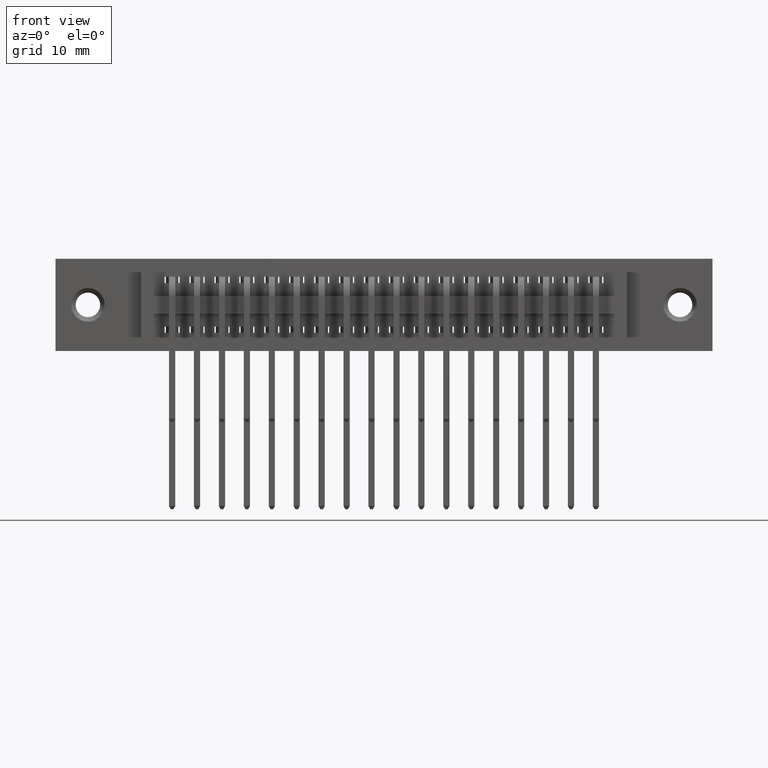
[diagram: clean part render]
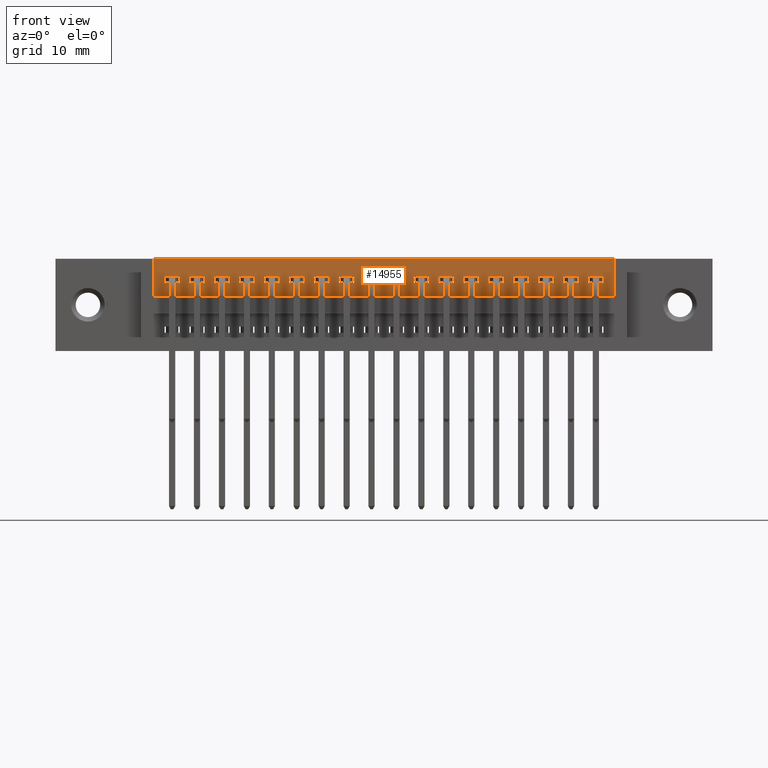
[diagram: same view with one face highlighted and labeled with its STEP entity id]
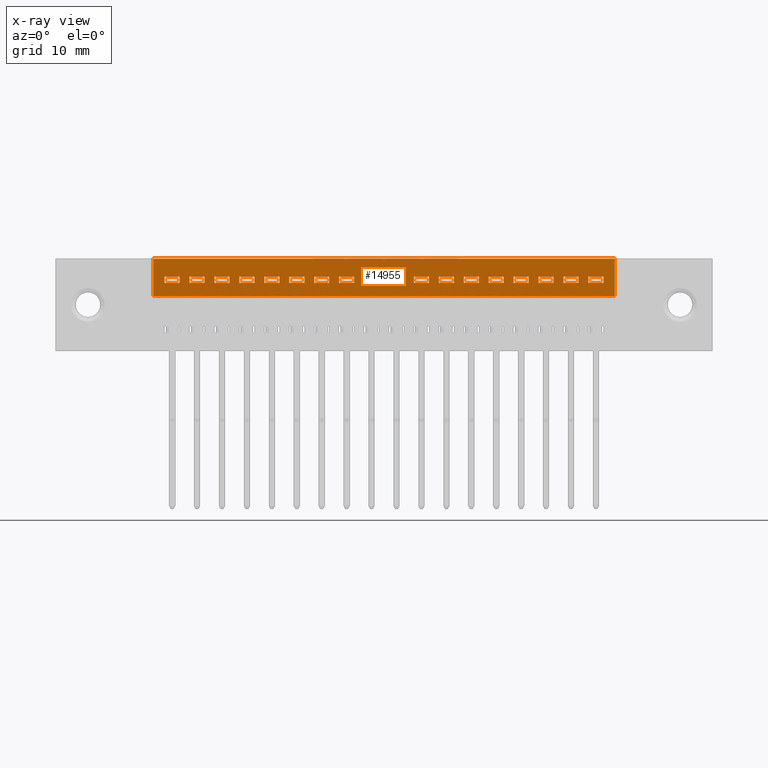
[diagram: x-ray of the same camera — body ghosted, the highlighted face saturated]
A machine part, front view. The second image highlights one B-rep face of the part: STEP entity #14955.
The next image is the same camera in x-ray: the body ghosted, the highlighted face saturated — about 0% of this face is hidden behind the body in this view.
In plain terms, the highlighted planar face has unit normal (0, -1, 0).
Its self-contained STEP definition (entity closure, byte-faithful):
#13 = VERTEX_POINT ( 'NONE', #13791 ) ;
#114 = DIRECTION ( 'NONE',  ( 1.000000000000000000, 0.0000000000000000000, 0.0000000000000000000 ) ) ;
#119 = EDGE_LOOP ( 'NONE', ( #5108, #15818, #12258, #6383 ) ) ;
#123 = CARTESIAN_POINT ( 'NONE',  ( 1.237500000000000000, 0.05000000000000000300, -0.1499999999999999900 ) ) ;
#124 = VECTOR ( 'NONE', #6299, 39.37007874015748100 ) ;
#161 = LINE ( 'NONE', #12081, #16521 ) ;
#196 = VECTOR ( 'NONE', #18977, 39.37007874015748100 ) ;
#213 = CARTESIAN_POINT ( 'NONE',  ( 0.5974999999999999200, 0.05000000000000000300, -0.09750000000000005900 ) ) ;
#282 = CARTESIAN_POINT ( 'NONE',  ( 1.597500000000000100, 0.05000000000000000300, -0.1499999999999999900 ) ) ;
#284 = DIRECTION ( 'NONE',  ( -0.0000000000000000000, -0.0000000000000000000, 1.000000000000000000 ) ) ;
#411 = DIRECTION ( 'NONE',  ( -1.000000000000000000, 0.0000000000000000000, 0.0000000000000000000 ) ) ;
#419 = ORIENTED_EDGE ( 'NONE', *, *, #19956, .F. ) ;
#428 = CARTESIAN_POINT ( 'NONE',  ( 0.8974999999999999600, 0.05000000000000014800, -0.07250000000000002300 ) ) ;
#453 = CARTESIAN_POINT ( 'NONE',  ( 0.3924999999999996800, 0.05000000000000000300, -0.09750000000000003100 ) ) ;
#509 = CARTESIAN_POINT ( 'NONE',  ( 0.3924999999999996800, 0.05000000000000000300, -0.09749999999999996200 ) ) ;
#554 = CARTESIAN_POINT ( 'NONE',  ( 1.937500000000000000, 0.05000000000000014800, -0.07249999999999996700 ) ) ;
#572 = VERTEX_POINT ( 'NONE', #3306 ) ;
#621 = CARTESIAN_POINT ( 'NONE',  ( 1.937500000000000000, 0.05000000000000000300, -0.1499999999999999900 ) ) ;
#626 = EDGE_CURVE ( 'NONE', #18184, #15515, #16091, .T. ) ;
#645 = ORIENTED_EDGE ( 'NONE', *, *, #12135, .F. ) ;
#658 = ORIENTED_EDGE ( 'NONE', *, *, #18298, .F. ) ;
#678 = VECTOR ( 'NONE', #6765, 39.37007874015748100 ) ;
#744 = VECTOR ( 'NONE', #15728, 39.37007874015748100 ) ;
#763 = CARTESIAN_POINT ( 'NONE',  ( 0.8974999999999999600, 0.05000000000000000300, -0.1499999999999999900 ) ) ;
#766 = EDGE_CURVE ( 'NONE', #3446, #11500, #17750, .T. ) ;
#813 = LINE ( 'NONE', #17484, #17121 ) ;
#842 = DIRECTION ( 'NONE',  ( -1.000000000000000000, 0.0000000000000000000, 0.0000000000000000000 ) ) ;
#898 = DIRECTION ( 'NONE',  ( 0.0000000000000000000, 0.0000000000000000000, 1.000000000000000000 ) ) ;
#913 = CARTESIAN_POINT ( 'NONE',  ( 2.037500000000000100, 0.05000000000000000300, -0.1499999999999999900 ) ) ;
#914 = EDGE_CURVE ( 'NONE', #9929, #18307, #10838, .T. ) ;
#933 = CARTESIAN_POINT ( 'NONE',  ( 1.337500000000000100, 0.05000000000000014800, -0.07250000000000000900 ) ) ;
#956 = EDGE_CURVE ( 'NONE', #572, #1815, #3331, .T. ) ;
#1009 = LINE ( 'NONE', #7665, #13710 ) ;
#1055 = DIRECTION ( 'NONE',  ( -1.000000000000000000, 0.0000000000000000000, 0.0000000000000000000 ) ) ;
#1059 = EDGE_CURVE ( 'NONE', #19697, #14354, #16557, .T. ) ;
#1093 = VERTEX_POINT ( 'NONE', #19363 ) ;
#1104 = VECTOR ( 'NONE', #5077, 39.37007874015748100 ) ;
#1110 = VECTOR ( 'NONE', #12132, 39.37007874015748100 ) ;
#1207 = CARTESIAN_POINT ( 'NONE',  ( 1.137499999999999700, 0.05000000000000000300, -0.1499999999999999900 ) ) ;
#1221 = EDGE_CURVE ( 'NONE', #19748, #3450, #18697, .T. ) ;
#1274 = CARTESIAN_POINT ( 'NONE',  ( 1.997499999999999800, 0.05000000000000000300, -0.09749999999999996200 ) ) ;
#1307 = LINE ( 'NONE', #509, #5159 ) ;
#1408 = EDGE_LOOP ( 'NONE', ( #12247, #4354, #2517, #7371 ) ) ;
#1435 = VECTOR ( 'NONE', #16923, 39.37007874015748100 ) ;
#1452 = ORIENTED_EDGE ( 'NONE', *, *, #6607, .T. ) ;
#1462 = CARTESIAN_POINT ( 'NONE',  ( 1.197499999999999800, 0.05000000000000000300, -0.1499999999999999900 ) ) ;
#1471 = LINE ( 'NONE', #16442, #13629 ) ;
#1473 = EDGE_LOOP ( 'NONE', ( #8960, #15468, #16423, #6030 ) ) ;
#1527 = LINE ( 'NONE', #19217, #4893 ) ;
#1632 = EDGE_LOOP ( 'NONE', ( #645, #7972, #19641, #5130 ) ) ;
#1639 = LINE ( 'NONE', #5899, #1110 ) ;
#1671 = VECTOR ( 'NONE', #9610, 39.37007874015748100 ) ;
#1698 = CARTESIAN_POINT ( 'NONE',  ( 1.637500000000000000, 0.05000000000000001000, -0.09749999999999998900 ) ) ;
#1734 = DIRECTION ( 'NONE',  ( 0.0000000000000000000, 0.0000000000000000000, 1.000000000000000000 ) ) ;
#1739 = ORIENTED_EDGE ( 'NONE', *, *, #6784, .F. ) ;
#1771 = VERTEX_POINT ( 'NONE', #3778 ) ;
#1778 = VECTOR ( 'NONE', #898, 39.37007874015748100 ) ;
#1815 = VERTEX_POINT ( 'NONE', #13347 ) ;
#1863 = CARTESIAN_POINT ( 'NONE',  ( 2.097500000000000100, 0.05000000000000000300, -0.1499999999999999900 ) ) ;
#1880 = VECTOR ( 'NONE', #19351, 39.37007874015748100 ) ;
#1883 = VERTEX_POINT ( 'NONE', #16562 ) ;
#1927 = LINE ( 'NONE', #15385, #1435 ) ;
#1937 = ORIENTED_EDGE ( 'NONE', *, *, #6720, .T. ) ;
#1980 = VECTOR ( 'NONE', #10892, 39.37007874015748100 ) ;
#2026 = VERTEX_POINT ( 'NONE', #10752 ) ;
#2059 = DIRECTION ( 'NONE',  ( 0.0000000000000000000, 0.0000000000000000000, 1.000000000000000000 ) ) ;
#2060 = EDGE_CURVE ( 'NONE', #16183, #11002, #4071, .T. ) ;
#2093 = EDGE_CURVE ( 'NONE', #8984, #5537, #10517, .T. ) ;
#2097 = EDGE_CURVE ( 'NONE', #12330, #19501, #3035, .T. ) ;
#2123 = LINE ( 'NONE', #12322, #14261 ) ;
#2126 = DIRECTION ( 'NONE',  ( 1.000000000000000000, 0.0000000000000000000, 0.0000000000000000000 ) ) ;
#2160 = VECTOR ( 'NONE', #16875, 39.37007874015748100 ) ;
#2198 = DIRECTION ( 'NONE',  ( 0.0000000000000000000, 0.0000000000000000000, 1.000000000000000000 ) ) ;
#2206 = LINE ( 'NONE', #1207, #5584 ) ;
#2218 = CARTESIAN_POINT ( 'NONE',  ( 1.297500000000000100, 0.05000000000000000300, -0.1499999999999999900 ) ) ;
#2275 = VERTEX_POINT ( 'NONE', #10038 ) ;
#2288 = DIRECTION ( 'NONE',  ( 0.0000000000000000000, 0.0000000000000000000, 1.000000000000000000 ) ) ;
#2309 = CARTESIAN_POINT ( 'NONE',  ( 0.5374999999999999800, 0.05000000000000000300, -0.1499999999999999900 ) ) ;
#2320 = CARTESIAN_POINT ( 'NONE',  ( 0.9974999999999999400, 0.05000000000000000300, -0.09750000000000001700 ) ) ;
#2358 = DIRECTION ( 'NONE',  ( 0.0000000000000000000, 0.0000000000000000000, 1.000000000000000000 ) ) ;
#2377 = VERTEX_POINT ( 'NONE', #19456 ) ;
#2399 = EDGE_CURVE ( 'NONE', #6497, #6520, #17172, .T. ) ;
#2417 = DIRECTION ( 'NONE',  ( 0.0000000000000000000, 0.0000000000000000000, 1.000000000000000000 ) ) ;
#2512 = CARTESIAN_POINT ( 'NONE',  ( 1.697499999999999800, 0.05000000000000000300, -0.09749999999999998900 ) ) ;
#2517 = ORIENTED_EDGE ( 'NONE', *, *, #17414, .F. ) ;
#2525 = LINE ( 'NONE', #13852, #9580 ) ;
#2554 = ORIENTED_EDGE ( 'NONE', *, *, #14363, .F. ) ;
#2571 = EDGE_CURVE ( 'NONE', #13666, #5276, #14757, .T. ) ;
#2702 = VERTEX_POINT ( 'NONE', #17144 ) ;
#2718 = LINE ( 'NONE', #10281, #10738 ) ;
#2727 = EDGE_CURVE ( 'NONE', #10124, #13666, #3974, .T. ) ;
#2866 = VERTEX_POINT ( 'NONE', #11454 ) ;
#2992 = CARTESIAN_POINT ( 'NONE',  ( 1.137499999999999700, 0.05000000000000001000, -0.09750000000000001700 ) ) ;
#3035 = LINE ( 'NONE', #13959, #1980 ) ;
#3062 = EDGE_CURVE ( 'NONE', #6695, #7894, #18800, .T. ) ;
#3072 = CARTESIAN_POINT ( 'NONE',  ( 1.097499999999999900, 0.05000000000000000300, -0.09750000000000001700 ) ) ;
#3076 = FACE_BOUND ( 'NONE', #6888, .T. ) ;
#3132 = EDGE_CURVE ( 'NONE', #3450, #2377, #1639, .T. ) ;
#3147 = VERTEX_POINT ( 'NONE', #4265 ) ;
#3187 = CARTESIAN_POINT ( 'NONE',  ( 0.3924999999999996800, 0.05000000000000000300, -0.07250000000000000900 ) ) ;
#3256 = LINE ( 'NONE', #8926, #15780 ) ;
#3272 = FACE_BOUND ( 'NONE', #8173, .T. ) ;
#3277 = VECTOR ( 'NONE', #12723, 39.37007874015748100 ) ;
#3291 = LINE ( 'NONE', #7162, #19368 ) ;
#3306 = CARTESIAN_POINT ( 'NONE',  ( 2.037500000000000100, 0.05000000000000001000, -0.09749999999999996200 ) ) ;
#3324 = CARTESIAN_POINT ( 'NONE',  ( 1.637500000000000000, 0.05000000000000014800, -0.07249999999999998100 ) ) ;
#3331 = LINE ( 'NONE', #913, #1778 ) ;
#3398 = LINE ( 'NONE', #11325, #18542 ) ;
#3446 = VERTEX_POINT ( 'NONE', #8290 ) ;
#3450 = VERTEX_POINT ( 'NONE', #15969 ) ;
#3463 = ORIENTED_EDGE ( 'NONE', *, *, #17467, .F. ) ;
#3466 = LINE ( 'NONE', #4364, #15505 ) ;
#3487 = ORIENTED_EDGE ( 'NONE', *, *, #2097, .F. ) ;
#3501 = DIRECTION ( 'NONE',  ( 1.000000000000000000, 0.0000000000000000000, 0.0000000000000000000 ) ) ;
#3555 = EDGE_LOOP ( 'NONE', ( #16845, #7780, #18363, #15508 ) ) ;
#3567 = FACE_BOUND ( 'NONE', #3555, .T. ) ;
#3595 = CARTESIAN_POINT ( 'NONE',  ( 0.3924999999999996800, 0.05000000000000000300, -0.1499999999999999900 ) ) ;
#3663 = CARTESIAN_POINT ( 'NONE',  ( 0.7974999999999998800, 0.05000000000000014800, -0.07250000000000002300 ) ) ;
#3717 = ORIENTED_EDGE ( 'NONE', *, *, #956, .T. ) ;
#3721 = VERTEX_POINT ( 'NONE', #8894 ) ;
#3750 = CARTESIAN_POINT ( 'NONE',  ( 0.3924999999999996800, 0.05000000000000000300, -0.07249999999999998100 ) ) ;
#3778 = CARTESIAN_POINT ( 'NONE',  ( 1.737500000000000000, 0.05000000000000014800, -0.07249999999999998100 ) ) ;
#3804 = LINE ( 'NONE', #14410, #15330 ) ;
#3891 = CARTESIAN_POINT ( 'NONE',  ( 1.637500000000000000, 0.05000000000000000300, -0.1499999999999999900 ) ) ;
#3939 = ORIENTED_EDGE ( 'NONE', *, *, #2093, .F. ) ;
#3974 = LINE ( 'NONE', #1462, #19995 ) ;
#3991 = DIRECTION ( 'NONE',  ( 1.000000000000000000, 0.0000000000000000000, 0.0000000000000000000 ) ) ;
#4071 = LINE ( 'NONE', #18357, #15562 ) ;
#4074 = CARTESIAN_POINT ( 'NONE',  ( 1.897500000000000000, 0.05000000000000014800, -0.07249999999999996700 ) ) ;
#4113 = VECTOR ( 'NONE', #16258, 39.37007874015748100 ) ;
#4114 = FACE_BOUND ( 'NONE', #12463, .T. ) ;
#4173 = FACE_OUTER_BOUND ( 'NONE', #1473, .T. ) ;
#4233 = VECTOR ( 'NONE', #17168, 39.37007874015748100 ) ;
#4252 = LINE ( 'NONE', #18396, #16191 ) ;
#4265 = CARTESIAN_POINT ( 'NONE',  ( 1.337500000000000100, 0.05000000000000001000, -0.09750000000000000300 ) ) ;
#4354 = ORIENTED_EDGE ( 'NONE', *, *, #17125, .T. ) ;
#4364 = CARTESIAN_POINT ( 'NONE',  ( 0.9374999999999998900, 0.05000000000000000300, -0.1499999999999999900 ) ) ;
#4382 = ORIENTED_EDGE ( 'NONE', *, *, #18071, .T. ) ;
#4391 = ORIENTED_EDGE ( 'NONE', *, *, #3132, .F. ) ;
#4405 = EDGE_CURVE ( 'NONE', #2702, #13, #11588, .T. ) ;
#4436 = CARTESIAN_POINT ( 'NONE',  ( 2.137500000000000200, 0.05000000000000014800, -0.07249999999999996700 ) ) ;
#4445 = LINE ( 'NONE', #12842, #8664 ) ;
#4471 = EDGE_CURVE ( 'NONE', #1883, #20291, #5960, .T. ) ;
#4472 = VECTOR ( 'NONE', #14202, 39.37007874015748100 ) ;
#4480 = DIRECTION ( 'NONE',  ( 1.000000000000000000, 0.0000000000000000000, 0.0000000000000000000 ) ) ;
#4521 = CARTESIAN_POINT ( 'NONE',  ( 1.597500000000000100, 0.05000000000000000300, -0.09750000000000000300 ) ) ;
#4530 = DIRECTION ( 'NONE',  ( 1.000000000000000000, 0.0000000000000000000, 0.0000000000000000000 ) ) ;
#4551 = ORIENTED_EDGE ( 'NONE', *, *, #11077, .F. ) ;
#4581 = DIRECTION ( 'NONE',  ( 1.000000000000000000, 0.0000000000000000000, 0.0000000000000000000 ) ) ;
#4637 = EDGE_LOOP ( 'NONE', ( #2554, #8376, #10852, #10874 ) ) ;
#4679 = ORIENTED_EDGE ( 'NONE', *, *, #14332, .T. ) ;
#4686 = CARTESIAN_POINT ( 'NONE',  ( 0.4374999999999998900, 0.05000000000000000300, -0.1499999999999999900 ) ) ;
#4702 = VECTOR ( 'NONE', #3991, 39.37007874015748100 ) ;
#4722 = VECTOR ( 'NONE', #19295, 39.37007874015748100 ) ;
#4732 = CARTESIAN_POINT ( 'NONE',  ( 1.397500000000000000, 0.05000000000000000300, -0.09750000000000000300 ) ) ;
#4747 = CARTESIAN_POINT ( 'NONE',  ( 0.3924999999999996800, 0.05000000000000000300, -0.09750000000000005900 ) ) ;
#4893 = VECTOR ( 'NONE', #10075, 39.37007874015748100 ) ;
#5020 = VECTOR ( 'NONE', #19304, 39.37007874015748100 ) ;
#5027 = CARTESIAN_POINT ( 'NONE',  ( 0.3924999999999996800, 0.05000000000000000300, -0.1499999999999999900 ) ) ;
#5077 = DIRECTION ( 'NONE',  ( 1.000000000000000000, 0.0000000000000000000, 0.0000000000000000000 ) ) ;
#5108 = ORIENTED_EDGE ( 'NONE', *, *, #10777, .F. ) ;
#5130 = ORIENTED_EDGE ( 'NONE', *, *, #1059, .F. ) ;
#5159 = VECTOR ( 'NONE', #11694, 39.37007874015748100 ) ;
#5187 = LINE ( 'NONE', #5650, #4702 ) ;
#5276 = VERTEX_POINT ( 'NONE', #8221 ) ;
#5327 = CARTESIAN_POINT ( 'NONE',  ( 1.597500000000000100, 0.05000000000000014800, -0.07249999999999998100 ) ) ;
#5330 = EDGE_LOOP ( 'NONE', ( #7520, #7781, #12177, #11224 ) ) ;
#5391 = VECTOR ( 'NONE', #14858, 39.37007874015748100 ) ;
#5403 = ORIENTED_EDGE ( 'NONE', *, *, #1221, .F. ) ;
#5408 = CARTESIAN_POINT ( 'NONE',  ( 1.337500000000000100, 0.05000000000000000300, -0.1499999999999999900 ) ) ;
#5409 = VECTOR ( 'NONE', #2288, 39.37007874015748100 ) ;
#5537 = VERTEX_POINT ( 'NONE', #7257 ) ;
#5584 = VECTOR ( 'NONE', #6172, 39.37007874015748100 ) ;
#5641 = EDGE_CURVE ( 'NONE', #8467, #2377, #10601, .T. ) ;
#5650 = CARTESIAN_POINT ( 'NONE',  ( 0.3924999999999996800, 0.05000000000000000300, -0.09750000000000001700 ) ) ;
#5695 = AXIS2_PLACEMENT_3D ( 'NONE', #5027, #6631, #17443 ) ;
#5712 = EDGE_CURVE ( 'NONE', #9924, #6509, #17306, .T. ) ;
#5729 = ORIENTED_EDGE ( 'NONE', *, *, #8459, .F. ) ;
#5754 = CARTESIAN_POINT ( 'NONE',  ( 1.097499999999999900, 0.05000000000000000300, -0.1499999999999999900 ) ) ;
#5772 = EDGE_CURVE ( 'NONE', #12230, #17380, #8157, .T. ) ;
#5805 = VERTEX_POINT ( 'NONE', #4732 ) ;
#5847 = ORIENTED_EDGE ( 'NONE', *, *, #13337, .T. ) ;
#5856 = CARTESIAN_POINT ( 'NONE',  ( 0.3924999999999996800, 0.05000000000000000300, -0.07249999999999998100 ) ) ;
#5865 = VECTOR ( 'NONE', #13937, 39.37007874015748100 ) ;
#5899 = CARTESIAN_POINT ( 'NONE',  ( 0.3924999999999996800, 0.05000000000000000300, -0.07250000000000000900 ) ) ;
#5916 = VERTEX_POINT ( 'NONE', #3324 ) ;
#5960 = LINE ( 'NONE', #14069, #6453 ) ;
#6014 = VERTEX_POINT ( 'NONE', #19385 ) ;
#6019 = EDGE_CURVE ( 'NONE', #17456, #11336, #20135, .T. ) ;
#6030 = ORIENTED_EDGE ( 'NONE', *, *, #14166, .T. ) ;
#6076 = DIRECTION ( 'NONE',  ( 0.0000000000000000000, 0.0000000000000000000, 1.000000000000000000 ) ) ;
#6093 = ORIENTED_EDGE ( 'NONE', *, *, #14021, .F. ) ;
#6137 = LINE ( 'NONE', #11417, #17952 ) ;
#6160 = VERTEX_POINT ( 'NONE', #933 ) ;
#6172 = DIRECTION ( 'NONE',  ( 0.0000000000000000000, 0.0000000000000000000, 1.000000000000000000 ) ) ;
#6221 = CARTESIAN_POINT ( 'NONE',  ( 0.5974999999999999200, 0.05000000000000000300, -0.1499999999999999900 ) ) ;
#6299 = DIRECTION ( 'NONE',  ( 0.0000000000000000000, 0.0000000000000000000, 1.000000000000000000 ) ) ;
#6348 = CARTESIAN_POINT ( 'NONE',  ( 0.6974999999999999000, 0.05000000000000000300, -0.09750000000000003100 ) ) ;
#6382 = LINE ( 'NONE', #10699, #18212 ) ;
#6383 = ORIENTED_EDGE ( 'NONE', *, *, #6384, .F. ) ;
#6384 = EDGE_CURVE ( 'NONE', #17591, #7298, #12967, .T. ) ;
#6422 = ORIENTED_EDGE ( 'NONE', *, *, #6933, .F. ) ;
#6449 = VERTEX_POINT ( 'NONE', #9753 ) ;
#6453 = VECTOR ( 'NONE', #15588, 39.37007874015748100 ) ;
#6497 = VERTEX_POINT ( 'NONE', #18965 ) ;
#6507 = VECTOR ( 'NONE', #2358, 39.37007874015748100 ) ;
#6509 = VERTEX_POINT ( 'NONE', #12916 ) ;
#6520 = VERTEX_POINT ( 'NONE', #14448 ) ;
#6607 = EDGE_CURVE ( 'NONE', #18915, #15177, #1527, .T. ) ;
#6631 = DIRECTION ( 'NONE',  ( 0.0000000000000000000, -1.000000000000000000, 0.0000000000000000000 ) ) ;
#6636 = VECTOR ( 'NONE', #2059, 39.37007874015748100 ) ;
#6647 = VERTEX_POINT ( 'NONE', #5327 ) ;
#6695 = VERTEX_POINT ( 'NONE', #8645 ) ;
#6702 = VECTOR ( 'NONE', #18914, 39.37007874015748100 ) ;
#6720 = EDGE_CURVE ( 'NONE', #6014, #19501, #11292, .T. ) ;
#6765 = DIRECTION ( 'NONE',  ( 0.0000000000000000000, 0.0000000000000000000, 1.000000000000000000 ) ) ;
#6784 = EDGE_CURVE ( 'NONE', #13, #20017, #12949, .T. ) ;
#6861 = ORIENTED_EDGE ( 'NONE', *, *, #15573, .F. ) ;
#6874 = FACE_BOUND ( 'NONE', #12638, .T. ) ;
#6878 = EDGE_CURVE ( 'NONE', #15515, #1771, #6382, .T. ) ;
#6888 = EDGE_LOOP ( 'NONE', ( #6861, #4382, #15599, #19404 ) ) ;
#6933 = EDGE_CURVE ( 'NONE', #17843, #15619, #2525, .T. ) ;
#6938 = DIRECTION ( 'NONE',  ( -1.000000000000000000, 0.0000000000000000000, 0.0000000000000000000 ) ) ;
#6967 = VERTEX_POINT ( 'NONE', #7765 ) ;
#7053 = ORIENTED_EDGE ( 'NONE', *, *, #9910, .F. ) ;
#7057 = CARTESIAN_POINT ( 'NONE',  ( 1.737500000000000000, 0.05000000000000000300, -0.1499999999999999900 ) ) ;
#7135 = VECTOR ( 'NONE', #13374, 39.37007874015748100 ) ;
#7136 = VERTEX_POINT ( 'NONE', #14548 ) ;
#7137 = EDGE_CURVE ( 'NONE', #8063, #16146, #6137, .T. ) ;
#7145 = CARTESIAN_POINT ( 'NONE',  ( 0.7374999999999998200, 0.05000000000000000300, -0.1499999999999999900 ) ) ;
#7162 = CARTESIAN_POINT ( 'NONE',  ( 0.4974999999999998900, 0.05000000000000000300, -0.1499999999999999900 ) ) ;
#7257 = CARTESIAN_POINT ( 'NONE',  ( 0.5974999999999999200, 0.05000000000000014800, -0.07250000000000003700 ) ) ;
#7298 = VERTEX_POINT ( 'NONE', #10383 ) ;
#7371 = ORIENTED_EDGE ( 'NONE', *, *, #17054, .F. ) ;
#7382 = CARTESIAN_POINT ( 'NONE',  ( 0.9974999999999999400, 0.05000000000000000300, -0.1499999999999999900 ) ) ;
#7384 = EDGE_CURVE ( 'NONE', #2275, #15941, #13654, .T. ) ;
#7395 = FACE_BOUND ( 'NONE', #119, .T. ) ;
#7412 = VECTOR ( 'NONE', #19627, 39.37007874015748100 ) ;
#7441 = DIRECTION ( 'NONE',  ( 0.0000000000000000000, 0.0000000000000000000, 1.000000000000000000 ) ) ;
#7454 = DIRECTION ( 'NONE',  ( -1.000000000000000000, 0.0000000000000000000, 0.0000000000000000000 ) ) ;
#7520 = ORIENTED_EDGE ( 'NONE', *, *, #2060, .F. ) ;
#7600 = LINE ( 'NONE', #11189, #3277 ) ;
#7665 = CARTESIAN_POINT ( 'NONE',  ( 0.3924999999999996800, 0.05000000000000000300, -0.09750000000000000300 ) ) ;
#7666 = CARTESIAN_POINT ( 'NONE',  ( 2.197499999999999800, 0.05000000000000000300, -0.1499999999999999900 ) ) ;
#7693 = EDGE_LOOP ( 'NONE', ( #12210, #19102, #13410, #1739 ) ) ;
#7714 = VERTEX_POINT ( 'NONE', #12862 ) ;
#7765 = CARTESIAN_POINT ( 'NONE',  ( 0.6374999999999998400, 0.05000000000000014800, -0.07250000000000003700 ) ) ;
#7780 = ORIENTED_EDGE ( 'NONE', *, *, #9595, .T. ) ;
#7781 = ORIENTED_EDGE ( 'NONE', *, *, #11360, .T. ) ;
#7795 = LINE ( 'NONE', #13812, #19045 ) ;
#7890 = FACE_BOUND ( 'NONE', #4637, .T. ) ;
#7894 = VERTEX_POINT ( 'NONE', #554 ) ;
#7944 = FACE_BOUND ( 'NONE', #7693, .T. ) ;
#7972 = ORIENTED_EDGE ( 'NONE', *, *, #3062, .T. ) ;
#7989 = VERTEX_POINT ( 'NONE', #18126 ) ;
#7996 = EDGE_CURVE ( 'NONE', #6509, #17142, #3256, .T. ) ;
#8063 = VERTEX_POINT ( 'NONE', #19778 ) ;
#8157 = LINE ( 'NONE', #12498, #19911 ) ;
#8173 = EDGE_LOOP ( 'NONE', ( #8507, #19043, #8680, #3939 ) ) ;
#8218 = CARTESIAN_POINT ( 'NONE',  ( 0.3924999999999996800, 0.05000000000000000300, -0.09750000000000000300 ) ) ;
#8221 = CARTESIAN_POINT ( 'NONE',  ( 1.137499999999999700, 0.05000000000000014800, -0.07250000000000000900 ) ) ;
#8245 = CARTESIAN_POINT ( 'NONE',  ( 1.997499999999999800, 0.05000000000000014800, -0.07249999999999996700 ) ) ;
#8290 = CARTESIAN_POINT ( 'NONE',  ( 2.097500000000000100, 0.05000000000000000300, -0.09749999999999996200 ) ) ;
#8376 = ORIENTED_EDGE ( 'NONE', *, *, #11293, .T. ) ;
#8411 = LINE ( 'NONE', #18079, #16608 ) ;
#8434 = LINE ( 'NONE', #5408, #4722 ) ;
#8459 = EDGE_CURVE ( 'NONE', #9193, #16614, #2718, .T. ) ;
#8467 = VERTEX_POINT ( 'NONE', #13369 ) ;
#8507 = ORIENTED_EDGE ( 'NONE', *, *, #13572, .F. ) ;
#8533 = ORIENTED_EDGE ( 'NONE', *, *, #11526, .F. ) ;
#8645 = CARTESIAN_POINT ( 'NONE',  ( 1.937500000000000000, 0.05000000000000001000, -0.09749999999999996200 ) ) ;
#8664 = VECTOR ( 'NONE', #3501, 39.37007874015748100 ) ;
#8672 = DIRECTION ( 'NONE',  ( -1.000000000000000000, 0.0000000000000000000, 0.0000000000000000000 ) ) ;
#8680 = ORIENTED_EDGE ( 'NONE', *, *, #12810, .F. ) ;
#8723 = VECTOR ( 'NONE', #16635, 39.37007874015748100 ) ;
#8894 = CARTESIAN_POINT ( 'NONE',  ( 1.497500000000000100, 0.05000000000000014800, -0.07249999999999999500 ) ) ;
#8896 = VERTEX_POINT ( 'NONE', #1698 ) ;
#8905 = CARTESIAN_POINT ( 'NONE',  ( 1.797499999999999900, 0.05000000000000000300, -0.09749999999999998900 ) ) ;
#8926 = CARTESIAN_POINT ( 'NONE',  ( 0.3924999999999996800, 0.05000000000000000300, -0.07249999999999996700 ) ) ;
#8960 = ORIENTED_EDGE ( 'NONE', *, *, #5772, .T. ) ;
#8984 = VERTEX_POINT ( 'NONE', #213 ) ;
#9020 = CARTESIAN_POINT ( 'NONE',  ( 0.3924999999999996800, 0.05000000000000000300, -0.09750000000000000300 ) ) ;
#9045 = CARTESIAN_POINT ( 'NONE',  ( 1.737500000000000000, 0.05000000000000001000, -0.09749999999999998900 ) ) ;
#9111 = EDGE_CURVE ( 'NONE', #572, #3446, #1307, .T. ) ;
#9170 = VERTEX_POINT ( 'NONE', #2320 ) ;
#9182 = LINE ( 'NONE', #9360, #13281 ) ;
#9193 = VERTEX_POINT ( 'NONE', #4074 ) ;
#9321 = EDGE_CURVE ( 'NONE', #3147, #5805, #1009, .T. ) ;
#9360 = CARTESIAN_POINT ( 'NONE',  ( 0.3924999999999996800, 0.05000000000000000300, 0.0000000000000000000 ) ) ;
#9495 = EDGE_LOOP ( 'NONE', ( #8533, #1452, #658, #6093 ) ) ;
#9519 = LINE ( 'NONE', #8218, #17201 ) ;
#9561 = VECTOR ( 'NONE', #18220, 39.37007874015748100 ) ;
#9564 = DIRECTION ( 'NONE',  ( 0.0000000000000000000, 0.0000000000000000000, 1.000000000000000000 ) ) ;
#9580 = VECTOR ( 'NONE', #4480, 39.37007874015748100 ) ;
#9595 = EDGE_CURVE ( 'NONE', #7989, #15018, #12966, .T. ) ;
#9610 = DIRECTION ( 'NONE',  ( -1.000000000000000000, 0.0000000000000000000, 0.0000000000000000000 ) ) ;
#9634 = VECTOR ( 'NONE', #6076, 39.37007874015748100 ) ;
#9713 = EDGE_CURVE ( 'NONE', #11500, #1815, #18701, .T. ) ;
#9753 = CARTESIAN_POINT ( 'NONE',  ( 0.9374999999999998900, 0.05000000000000014800, -0.07250000000000002300 ) ) ;
#9787 = DIRECTION ( 'NONE',  ( 1.000000000000000000, 0.0000000000000000000, 0.0000000000000000000 ) ) ;
#9804 = EDGE_CURVE ( 'NONE', #8896, #5916, #14171, .T. ) ;
#9813 = ORIENTED_EDGE ( 'NONE', *, *, #20094, .F. ) ;
#9896 = VECTOR ( 'NONE', #114, 39.37007874015748100 ) ;
#9910 = EDGE_CURVE ( 'NONE', #5805, #18067, #15832, .T. ) ;
#9924 = VERTEX_POINT ( 'NONE', #15123 ) ;
#9929 = VERTEX_POINT ( 'NONE', #13660 ) ;
#10038 = CARTESIAN_POINT ( 'NONE',  ( 1.537500000000000100, 0.05000000000000001000, -0.09750000000000000300 ) ) ;
#10075 = DIRECTION ( 'NONE',  ( 0.0000000000000000000, 0.0000000000000000000, 1.000000000000000000 ) ) ;
#10124 = VERTEX_POINT ( 'NONE', #18613 ) ;
#10138 = CARTESIAN_POINT ( 'NONE',  ( 0.4974999999999998900, 0.05000000000000000300, -0.09750000000000005900 ) ) ;
#10183 = VECTOR ( 'NONE', #12778, 39.37007874015748100 ) ;
#10202 = LINE ( 'NONE', #14653, #15247 ) ;
#10281 = CARTESIAN_POINT ( 'NONE',  ( 0.3924999999999996800, 0.05000000000000000300, -0.07249999999999998100 ) ) ;
#10312 = EDGE_CURVE ( 'NONE', #7298, #5916, #16293, .T. ) ;
#10322 = ORIENTED_EDGE ( 'NONE', *, *, #10614, .T. ) ;
#10358 = EDGE_CURVE ( 'NONE', #11002, #17456, #3291, .T. ) ;
#10383 = CARTESIAN_POINT ( 'NONE',  ( 1.697499999999999800, 0.05000000000000014800, -0.07249999999999998100 ) ) ;
#10485 = EDGE_CURVE ( 'NONE', #2702, #17331, #161, .T. ) ;
#10517 = LINE ( 'NONE', #6221, #18665 ) ;
#10564 = EDGE_LOOP ( 'NONE', ( #9813, #19138, #4391, #5403 ) ) ;
#10601 = LINE ( 'NONE', #16688, #18270 ) ;
#10614 = EDGE_CURVE ( 'NONE', #7714, #17142, #11038, .T. ) ;
#10699 = CARTESIAN_POINT ( 'NONE',  ( 0.3924999999999996800, 0.05000000000000000300, -0.07249999999999998100 ) ) ;
#10738 = VECTOR ( 'NONE', #11844, 39.37007874015748100 ) ;
#10752 = CARTESIAN_POINT ( 'NONE',  ( 0.7974999999999998800, 0.05000000000000000300, -0.09750000000000003100 ) ) ;
#10777 = EDGE_CURVE ( 'NONE', #8896, #17591, #7600, .T. ) ;
#10838 = LINE ( 'NONE', #2218, #6636 ) ;
#10852 = ORIENTED_EDGE ( 'NONE', *, *, #2571, .F. ) ;
#10868 = CARTESIAN_POINT ( 'NONE',  ( 0.3924999999999996800, 0.05000000000000000300, -0.09750000000000003100 ) ) ;
#10871 = ORIENTED_EDGE ( 'NONE', *, *, #17148, .F. ) ;
#10874 = ORIENTED_EDGE ( 'NONE', *, *, #2727, .F. ) ;
#10878 = DIRECTION ( 'NONE',  ( -1.000000000000000000, -0.0000000000000000000, -0.0000000000000000000 ) ) ;
#10892 = DIRECTION ( 'NONE',  ( -1.000000000000000000, 0.0000000000000000000, 0.0000000000000000000 ) ) ;
#10937 = LINE ( 'NONE', #7057, #1880 ) ;
#10947 = DIRECTION ( 'NONE',  ( 0.0000000000000000000, 0.0000000000000000000, -1.000000000000000000 ) ) ;
#11002 = VERTEX_POINT ( 'NONE', #10138 ) ;
#11003 = VECTOR ( 'NONE', #20262, 39.37007874015748100 ) ;
#11038 = LINE ( 'NONE', #12348, #5865 ) ;
#11069 = FACE_BOUND ( 'NONE', #11122, .T. ) ;
#11077 = EDGE_CURVE ( 'NONE', #20291, #16640, #1471, .T. ) ;
#11122 = EDGE_LOOP ( 'NONE', ( #19762, #3717, #20088, #13189 ) ) ;
#11189 = CARTESIAN_POINT ( 'NONE',  ( 0.3924999999999996800, 0.05000000000000000300, -0.09749999999999998900 ) ) ;
#11201 = VERTEX_POINT ( 'NONE', #9045 ) ;
#11224 = ORIENTED_EDGE ( 'NONE', *, *, #10358, .F. ) ;
#11240 = ORIENTED_EDGE ( 'NONE', *, *, #7384, .F. ) ;
#11289 = CARTESIAN_POINT ( 'NONE',  ( 2.097500000000000100, 0.05000000000000014800, -0.07249999999999996700 ) ) ;
#11292 = LINE ( 'NONE', #7145, #7135 ) ;
#11293 = EDGE_CURVE ( 'NONE', #15423, #5276, #2206, .T. ) ;
#11325 = CARTESIAN_POINT ( 'NONE',  ( 1.837499999999999900, 0.05000000000000000300, -0.1499999999999999900 ) ) ;
#11336 = VERTEX_POINT ( 'NONE', #15498 ) ;
#11360 = EDGE_CURVE ( 'NONE', #16183, #11336, #12897, .T. ) ;
#11408 = CARTESIAN_POINT ( 'NONE',  ( 1.897500000000000000, 0.05000000000000000300, -0.09749999999999998900 ) ) ;
#11413 = CARTESIAN_POINT ( 'NONE',  ( 0.3924999999999996800, 0.05000000000000000300, -0.09750000000000001700 ) ) ;
#11417 = CARTESIAN_POINT ( 'NONE',  ( 2.242499999999999700, 0.05000000000000000300, 0.0000000000000000000 ) ) ;
#11444 = ORIENTED_EDGE ( 'NONE', *, *, #4471, .F. ) ;
#11454 = CARTESIAN_POINT ( 'NONE',  ( 0.9974999999999999400, 0.05000000000000014800, -0.07250000000000002300 ) ) ;
#11499 = CARTESIAN_POINT ( 'NONE',  ( 2.242499999999999700, 0.05000000000000000300, 0.0000000000000000000 ) ) ;
#11500 = VERTEX_POINT ( 'NONE', #11289 ) ;
#11526 = EDGE_CURVE ( 'NONE', #18915, #16251, #9519, .T. ) ;
#11532 = FACE_BOUND ( 'NONE', #15756, .T. ) ;
#11588 = LINE ( 'NONE', #10868, #15173 ) ;
#11694 = DIRECTION ( 'NONE',  ( 1.000000000000000000, 0.0000000000000000000, 0.0000000000000000000 ) ) ;
#11730 = CARTESIAN_POINT ( 'NONE',  ( 0.3924999999999996800, 0.05000000000000000300, -0.07250000000000005100 ) ) ;
#11836 = LINE ( 'NONE', #282, #19932 ) ;
#11844 = DIRECTION ( 'NONE',  ( -1.000000000000000000, 0.0000000000000000000, 0.0000000000000000000 ) ) ;
#11860 = LINE ( 'NONE', #3187, #4472 ) ;
#11989 = DIRECTION ( 'NONE',  ( 0.0000000000000000000, 0.0000000000000000000, 1.000000000000000000 ) ) ;
#12030 = FACE_BOUND ( 'NONE', #10564, .T. ) ;
#12072 = DIRECTION ( 'NONE',  ( 0.0000000000000000000, 0.0000000000000000000, 1.000000000000000000 ) ) ;
#12081 = CARTESIAN_POINT ( 'NONE',  ( 0.8374999999999999100, 0.05000000000000000300, -0.1499999999999999900 ) ) ;
#12086 = FACE_BOUND ( 'NONE', #5330, .T. ) ;
#12092 = DIRECTION ( 'NONE',  ( 0.0000000000000000000, 0.0000000000000000000, 1.000000000000000000 ) ) ;
#12123 = VECTOR ( 'NONE', #13608, 39.37007874015748100 ) ;
#12132 = DIRECTION ( 'NONE',  ( -1.000000000000000000, 0.0000000000000000000, 0.0000000000000000000 ) ) ;
#12135 = EDGE_CURVE ( 'NONE', #6695, #19697, #19076, .T. ) ;
#12177 = ORIENTED_EDGE ( 'NONE', *, *, #6019, .F. ) ;
#12210 = ORIENTED_EDGE ( 'NONE', *, *, #4405, .F. ) ;
#12230 = VERTEX_POINT ( 'NONE', #12925 ) ;
#12247 = ORIENTED_EDGE ( 'NONE', *, *, #19274, .F. ) ;
#12258 = ORIENTED_EDGE ( 'NONE', *, *, #10312, .F. ) ;
#12322 = CARTESIAN_POINT ( 'NONE',  ( 0.3924999999999996800, 0.05000000000000000300, -0.07249999999999999500 ) ) ;
#12330 = VERTEX_POINT ( 'NONE', #3663 ) ;
#12348 = CARTESIAN_POINT ( 'NONE',  ( 2.137500000000000200, 0.05000000000000000300, -0.1499999999999999900 ) ) ;
#12423 = EDGE_LOOP ( 'NONE', ( #12430, #17893, #14324, #7053 ) ) ;
#12430 = ORIENTED_EDGE ( 'NONE', *, *, #9321, .F. ) ;
#12463 = EDGE_LOOP ( 'NONE', ( #11444, #17636, #3463, #4551 ) ) ;
#12498 = CARTESIAN_POINT ( 'NONE',  ( 0.3924999999999996800, 0.05000000000000000300, 0.0000000000000000000 ) ) ;
#12532 = ORIENTED_EDGE ( 'NONE', *, *, #7996, .F. ) ;
#12598 = LINE ( 'NONE', #16613, #12123 ) ;
#12631 = EDGE_CURVE ( 'NONE', #1883, #6967, #1927, .T. ) ;
#12638 = EDGE_LOOP ( 'NONE', ( #14165, #10322, #12532, #14901 ) ) ;
#12676 = CARTESIAN_POINT ( 'NONE',  ( 0.8374999999999999100, 0.05000000000000014800, -0.07250000000000002300 ) ) ;
#12720 = CARTESIAN_POINT ( 'NONE',  ( 0.3924999999999996800, 0.05000000000000000300, -0.07249999999999998100 ) ) ;
#12721 = CARTESIAN_POINT ( 'NONE',  ( 0.3924999999999996800, 0.05000000000000000300, -0.07250000000000005100 ) ) ;
#12723 = DIRECTION ( 'NONE',  ( 1.000000000000000000, 0.0000000000000000000, 0.0000000000000000000 ) ) ;
#12778 = DIRECTION ( 'NONE',  ( -1.000000000000000000, 0.0000000000000000000, 0.0000000000000000000 ) ) ;
#12810 = EDGE_CURVE ( 'NONE', #5537, #6520, #18366, .T. ) ;
#12842 = CARTESIAN_POINT ( 'NONE',  ( 0.3924999999999996800, 0.05000000000000000300, -0.09750000000000001700 ) ) ;
#12862 = CARTESIAN_POINT ( 'NONE',  ( 2.137500000000000200, 0.05000000000000001000, -0.09749999999999996200 ) ) ;
#12877 = VECTOR ( 'NONE', #12092, 39.37007874015748100 ) ;
#12897 = LINE ( 'NONE', #4686, #124 ) ;
#12916 = CARTESIAN_POINT ( 'NONE',  ( 2.197499999999999800, 0.05000000000000014800, -0.07249999999999996700 ) ) ;
#12925 = CARTESIAN_POINT ( 'NONE',  ( 0.3924999999999996800, 0.05000000000000000300, 0.0000000000000000000 ) ) ;
#12949 = LINE ( 'NONE', #763, #20093 ) ;
#12966 = LINE ( 'NONE', #123, #196 ) ;
#12967 = LINE ( 'NONE', #20246, #744 ) ;
#13071 = DIRECTION ( 'NONE',  ( 0.0000000000000000000, 0.0000000000000000000, 1.000000000000000000 ) ) ;
#13088 = VECTOR ( 'NONE', #14942, 39.37007874015748100 ) ;
#13189 = ORIENTED_EDGE ( 'NONE', *, *, #766, .F. ) ;
#13281 = VECTOR ( 'NONE', #10878, 39.37007874015748100 ) ;
#13316 = LINE ( 'NONE', #13565, #8723 ) ;
#13331 = LINE ( 'NONE', #11730, #5020 ) ;
#13337 = EDGE_CURVE ( 'NONE', #2275, #1093, #13316, .T. ) ;
#13347 = CARTESIAN_POINT ( 'NONE',  ( 2.037500000000000100, 0.05000000000000014800, -0.07249999999999996700 ) ) ;
#13369 = CARTESIAN_POINT ( 'NONE',  ( 1.037499999999999900, 0.05000000000000001000, -0.09750000000000001700 ) ) ;
#13374 = DIRECTION ( 'NONE',  ( 0.0000000000000000000, 0.0000000000000000000, 1.000000000000000000 ) ) ;
#13394 = LINE ( 'NONE', #17566, #678 ) ;
#13410 = ORIENTED_EDGE ( 'NONE', *, *, #17751, .F. ) ;
#13480 = DIRECTION ( 'NONE',  ( 1.000000000000000000, 0.0000000000000000000, 0.0000000000000000000 ) ) ;
#13565 = CARTESIAN_POINT ( 'NONE',  ( 1.537500000000000100, 0.05000000000000000300, -0.1499999999999999900 ) ) ;
#13572 = EDGE_CURVE ( 'NONE', #6497, #8984, #16179, .T. ) ;
#13608 = DIRECTION ( 'NONE',  ( 0.0000000000000000000, 0.0000000000000000000, 1.000000000000000000 ) ) ;
#13620 = DIRECTION ( 'NONE',  ( 0.0000000000000000000, 0.0000000000000000000, 1.000000000000000000 ) ) ;
#13629 = VECTOR ( 'NONE', #2198, 39.37007874015748100 ) ;
#13654 = LINE ( 'NONE', #9020, #9561 ) ;
#13660 = CARTESIAN_POINT ( 'NONE',  ( 1.297500000000000100, 0.05000000000000000300, -0.09750000000000001700 ) ) ;
#13666 = VERTEX_POINT ( 'NONE', #15822 ) ;
#13710 = VECTOR ( 'NONE', #16882, 39.37007874015748100 ) ;
#13723 = EDGE_CURVE ( 'NONE', #7989, #9929, #17835, .T. ) ;
#13791 = CARTESIAN_POINT ( 'NONE',  ( 0.8974999999999999600, 0.05000000000000000300, -0.09750000000000003100 ) ) ;
#13812 = CARTESIAN_POINT ( 'NONE',  ( 1.897500000000000000, 0.05000000000000000300, -0.1499999999999999900 ) ) ;
#13839 = DIRECTION ( 'NONE',  ( -1.000000000000000000, 0.0000000000000000000, 0.0000000000000000000 ) ) ;
#13852 = CARTESIAN_POINT ( 'NONE',  ( 0.3924999999999996800, 0.05000000000000000300, -0.09749999999999998900 ) ) ;
#13937 = DIRECTION ( 'NONE',  ( 0.0000000000000000000, 0.0000000000000000000, 1.000000000000000000 ) ) ;
#13959 = CARTESIAN_POINT ( 'NONE',  ( 0.3924999999999996800, 0.05000000000000000300, -0.07250000000000002300 ) ) ;
#14004 = LINE ( 'NONE', #18972, #9896 ) ;
#14021 = EDGE_CURVE ( 'NONE', #16251, #3721, #12598, .T. ) ;
#14069 = CARTESIAN_POINT ( 'NONE',  ( 0.3924999999999996800, 0.05000000000000000300, -0.09750000000000003100 ) ) ;
#14165 = ORIENTED_EDGE ( 'NONE', *, *, #18554, .F. ) ;
#14166 = EDGE_CURVE ( 'NONE', #16146, #12230, #9182, .T. ) ;
#14171 = LINE ( 'NONE', #3891, #5391 ) ;
#14202 = DIRECTION ( 'NONE',  ( -1.000000000000000000, 0.0000000000000000000, 0.0000000000000000000 ) ) ;
#14250 = EDGE_CURVE ( 'NONE', #18307, #15018, #11860, .T. ) ;
#14261 = VECTOR ( 'NONE', #13839, 39.37007874015748100 ) ;
#14310 = EDGE_CURVE ( 'NONE', #18067, #6160, #19473, .T. ) ;
#14311 = CARTESIAN_POINT ( 'NONE',  ( 1.837499999999999900, 0.05000000000000001000, -0.09749999999999998900 ) ) ;
#14324 = ORIENTED_EDGE ( 'NONE', *, *, #14310, .F. ) ;
#14332 = EDGE_CURVE ( 'NONE', #17843, #16614, #3398, .T. ) ;
#14354 = VERTEX_POINT ( 'NONE', #8245 ) ;
#14363 = EDGE_CURVE ( 'NONE', #15423, #10124, #14004, .T. ) ;
#14371 = PLANE ( 'NONE',  #5695 ) ;
#14410 = CARTESIAN_POINT ( 'NONE',  ( 0.3924999999999996800, 0.05000000000000000300, -0.09749999999999998900 ) ) ;
#14416 = DIRECTION ( 'NONE',  ( 1.000000000000000000, 0.0000000000000000000, 0.0000000000000000000 ) ) ;
#14448 = CARTESIAN_POINT ( 'NONE',  ( 0.5374999999999999800, 0.05000000000000014800, -0.07250000000000003700 ) ) ;
#14469 = EDGE_CURVE ( 'NONE', #3147, #6160, #8434, .T. ) ;
#14548 = CARTESIAN_POINT ( 'NONE',  ( 0.9374999999999998900, 0.05000000000000001000, -0.09750000000000001700 ) ) ;
#14631 = VECTOR ( 'NONE', #411, 39.37007874015748100 ) ;
#14653 = CARTESIAN_POINT ( 'NONE',  ( 0.3924999999999996800, 0.05000000000000000300, -0.07250000000000000900 ) ) ;
#14655 = CARTESIAN_POINT ( 'NONE',  ( 0.3924999999999996800, 0.05000000000000000300, -0.07249999999999996700 ) ) ;
#14660 = DIRECTION ( 'NONE',  ( -1.000000000000000000, 0.0000000000000000000, 0.0000000000000000000 ) ) ;
#14709 = CARTESIAN_POINT ( 'NONE',  ( 1.997499999999999800, 0.05000000000000000300, -0.1499999999999999900 ) ) ;
#14719 = CARTESIAN_POINT ( 'NONE',  ( 0.4974999999999998900, 0.05000000000000014800, -0.07250000000000005100 ) ) ;
#14748 = LINE ( 'NONE', #12720, #10183 ) ;
#14757 = LINE ( 'NONE', #15337, #2160 ) ;
#14858 = DIRECTION ( 'NONE',  ( 0.0000000000000000000, 0.0000000000000000000, 1.000000000000000000 ) ) ;
#14869 = CARTESIAN_POINT ( 'NONE',  ( 0.3924999999999996800, 0.05000000000000000300, -0.07250000000000005100 ) ) ;
#14901 = ORIENTED_EDGE ( 'NONE', *, *, #5712, .F. ) ;
#14942 = DIRECTION ( 'NONE',  ( 0.0000000000000000000, 0.0000000000000000000, 1.000000000000000000 ) ) ;
#14955 = ADVANCED_FACE ( 'NONE', ( #4173, #12086, #3272, #4114, #20111, #7944, #16070, #12030, #7890, #3567, #19638, #15593, #11532, #7395, #3076, #19141, #15115, #11069, #6874 ), #14371, .T. ) ;
#15018 = VERTEX_POINT ( 'NONE', #19075 ) ;
#15115 = FACE_BOUND ( 'NONE', #1632, .T. ) ;
#15123 = CARTESIAN_POINT ( 'NONE',  ( 2.197499999999999800, 0.05000000000000000300, -0.09749999999999996200 ) ) ;
#15164 = VECTOR ( 'NONE', #7454, 39.37007874015748100 ) ;
#15173 = VECTOR ( 'NONE', #4581, 39.37007874015748100 ) ;
#15177 = VERTEX_POINT ( 'NONE', #19478 ) ;
#15247 = VECTOR ( 'NONE', #6938, 39.37007874015748100 ) ;
#15330 = VECTOR ( 'NONE', #15949, 39.37007874015748100 ) ;
#15337 = CARTESIAN_POINT ( 'NONE',  ( 0.3924999999999996800, 0.05000000000000000300, -0.07250000000000000900 ) ) ;
#15361 = CARTESIAN_POINT ( 'NONE',  ( 1.297500000000000100, 0.05000000000000014800, -0.07250000000000000900 ) ) ;
#15385 = CARTESIAN_POINT ( 'NONE',  ( 0.6374999999999998400, 0.05000000000000000300, -0.1499999999999999900 ) ) ;
#15423 = VERTEX_POINT ( 'NONE', #2992 ) ;
#15468 = ORIENTED_EDGE ( 'NONE', *, *, #20128, .T. ) ;
#15498 = CARTESIAN_POINT ( 'NONE',  ( 0.4374999999999998900, 0.05000000000000014800, -0.07250000000000005100 ) ) ;
#15505 = VECTOR ( 'NONE', #16809, 39.37007874015748100 ) ;
#15508 = ORIENTED_EDGE ( 'NONE', *, *, #914, .F. ) ;
#15515 = VERTEX_POINT ( 'NONE', #18809 ) ;
#15562 = VECTOR ( 'NONE', #4530, 39.37007874015748100 ) ;
#15573 = EDGE_CURVE ( 'NONE', #11201, #18184, #3804, .T. ) ;
#15588 = DIRECTION ( 'NONE',  ( 1.000000000000000000, 0.0000000000000000000, 0.0000000000000000000 ) ) ;
#15593 = FACE_BOUND ( 'NONE', #9495, .T. ) ;
#15599 = ORIENTED_EDGE ( 'NONE', *, *, #6878, .F. ) ;
#15613 = VECTOR ( 'NONE', #8672, 39.37007874015748100 ) ;
#15619 = VERTEX_POINT ( 'NONE', #11408 ) ;
#15642 = LINE ( 'NONE', #5856, #15164 ) ;
#15689 = CARTESIAN_POINT ( 'NONE',  ( 1.837499999999999900, 0.05000000000000014800, -0.07249999999999996700 ) ) ;
#15728 = DIRECTION ( 'NONE',  ( 0.0000000000000000000, 0.0000000000000000000, 1.000000000000000000 ) ) ;
#15756 = EDGE_LOOP ( 'NONE', ( #11240, #5847, #16504, #419 ) ) ;
#15780 = VECTOR ( 'NONE', #842, 39.37007874015748100 ) ;
#15818 = ORIENTED_EDGE ( 'NONE', *, *, #9804, .T. ) ;
#15822 = CARTESIAN_POINT ( 'NONE',  ( 1.197499999999999800, 0.05000000000000014800, -0.07250000000000000900 ) ) ;
#15832 = LINE ( 'NONE', #18060, #19386 ) ;
#15941 = VERTEX_POINT ( 'NONE', #4521 ) ;
#15949 = DIRECTION ( 'NONE',  ( 1.000000000000000000, 0.0000000000000000000, 0.0000000000000000000 ) ) ;
#15969 = CARTESIAN_POINT ( 'NONE',  ( 1.097499999999999900, 0.05000000000000014800, -0.07250000000000000900 ) ) ;
#16070 = FACE_BOUND ( 'NONE', #1408, .T. ) ;
#16091 = LINE ( 'NONE', #16932, #7412 ) ;
#16142 = EDGE_CURVE ( 'NONE', #2026, #12330, #13394, .T. ) ;
#16146 = VERTEX_POINT ( 'NONE', #11499 ) ;
#16167 = CARTESIAN_POINT ( 'NONE',  ( 0.4374999999999998900, 0.05000000000000001000, -0.09750000000000005900 ) ) ;
#16179 = LINE ( 'NONE', #4747, #4233 ) ;
#16183 = VERTEX_POINT ( 'NONE', #16167 ) ;
#16191 = VECTOR ( 'NONE', #17126, 39.37007874015748100 ) ;
#16251 = VERTEX_POINT ( 'NONE', #17822 ) ;
#16258 = DIRECTION ( 'NONE',  ( 0.0000000000000000000, 0.0000000000000000000, 1.000000000000000000 ) ) ;
#16293 = LINE ( 'NONE', #3750, #19856 ) ;
#16396 = DIRECTION ( 'NONE',  ( 0.0000000000000000000, 0.0000000000000000000, 1.000000000000000000 ) ) ;
#16423 = ORIENTED_EDGE ( 'NONE', *, *, #7137, .T. ) ;
#16442 = CARTESIAN_POINT ( 'NONE',  ( 0.6974999999999999000, 0.05000000000000000300, -0.1499999999999999900 ) ) ;
#16504 = ORIENTED_EDGE ( 'NONE', *, *, #20168, .F. ) ;
#16521 = VECTOR ( 'NONE', #7441, 39.37007874015748100 ) ;
#16557 = LINE ( 'NONE', #14709, #4113 ) ;
#16562 = CARTESIAN_POINT ( 'NONE',  ( 0.6374999999999998400, 0.05000000000000001000, -0.09750000000000003100 ) ) ;
#16608 = VECTOR ( 'NONE', #13480, 39.37007874015748100 ) ;
#16613 = CARTESIAN_POINT ( 'NONE',  ( 1.497500000000000100, 0.05000000000000000300, -0.1499999999999999900 ) ) ;
#16614 = VERTEX_POINT ( 'NONE', #15689 ) ;
#16635 = DIRECTION ( 'NONE',  ( 0.0000000000000000000, 0.0000000000000000000, 1.000000000000000000 ) ) ;
#16640 = VERTEX_POINT ( 'NONE', #18752 ) ;
#16688 = CARTESIAN_POINT ( 'NONE',  ( 1.037499999999999900, 0.05000000000000000300, -0.1499999999999999900 ) ) ;
#16809 = DIRECTION ( 'NONE',  ( 0.0000000000000000000, 0.0000000000000000000, 1.000000000000000000 ) ) ;
#16812 = CARTESIAN_POINT ( 'NONE',  ( 1.437500000000000200, 0.05000000000000001000, -0.09750000000000000300 ) ) ;
#16845 = ORIENTED_EDGE ( 'NONE', *, *, #13723, .F. ) ;
#16874 = DIRECTION ( 'NONE',  ( 0.0000000000000000000, 0.0000000000000000000, 1.000000000000000000 ) ) ;
#16875 = DIRECTION ( 'NONE',  ( -1.000000000000000000, 0.0000000000000000000, 0.0000000000000000000 ) ) ;
#16882 = DIRECTION ( 'NONE',  ( 1.000000000000000000, 0.0000000000000000000, 0.0000000000000000000 ) ) ;
#16923 = DIRECTION ( 'NONE',  ( 0.0000000000000000000, 0.0000000000000000000, 1.000000000000000000 ) ) ;
#16932 = CARTESIAN_POINT ( 'NONE',  ( 1.797499999999999900, 0.05000000000000000300, -0.1499999999999999900 ) ) ;
#16945 = LINE ( 'NONE', #7382, #12877 ) ;
#17027 = DIRECTION ( 'NONE',  ( 0.0000000000000000000, 0.0000000000000000000, 1.000000000000000000 ) ) ;
#17054 = EDGE_CURVE ( 'NONE', #9170, #2866, #16945, .T. ) ;
#17121 = VECTOR ( 'NONE', #14416, 39.37007874015748100 ) ;
#17125 = EDGE_CURVE ( 'NONE', #7136, #6449, #3466, .T. ) ;
#17126 = DIRECTION ( 'NONE',  ( -1.000000000000000000, 0.0000000000000000000, 0.0000000000000000000 ) ) ;
#17142 = VERTEX_POINT ( 'NONE', #4436 ) ;
#17144 = CARTESIAN_POINT ( 'NONE',  ( 0.8374999999999999100, 0.05000000000000001000, -0.09750000000000003100 ) ) ;
#17148 = EDGE_CURVE ( 'NONE', #15619, #9193, #7795, .T. ) ;
#17168 = DIRECTION ( 'NONE',  ( 1.000000000000000000, 0.0000000000000000000, 0.0000000000000000000 ) ) ;
#17172 = LINE ( 'NONE', #2309, #13088 ) ;
#17201 = VECTOR ( 'NONE', #9787, 39.37007874015748100 ) ;
#17306 = LINE ( 'NONE', #7666, #9634 ) ;
#17331 = VERTEX_POINT ( 'NONE', #12676 ) ;
#17380 = VERTEX_POINT ( 'NONE', #3595 ) ;
#17400 = CARTESIAN_POINT ( 'NONE',  ( 0.3924999999999996800, 0.05000000000000000300, -0.07250000000000000900 ) ) ;
#17414 = EDGE_CURVE ( 'NONE', #2866, #6449, #10202, .T. ) ;
#17432 = ORIENTED_EDGE ( 'NONE', *, *, #16142, .F. ) ;
#17443 = DIRECTION ( 'NONE',  ( 0.0000000000000000000, -0.0000000000000000000, -1.000000000000000000 ) ) ;
#17456 = VERTEX_POINT ( 'NONE', #14719 ) ;
#17467 = EDGE_CURVE ( 'NONE', #16640, #6967, #13331, .T. ) ;
#17484 = CARTESIAN_POINT ( 'NONE',  ( 0.3924999999999996800, 0.05000000000000000300, -0.09749999999999996200 ) ) ;
#17566 = CARTESIAN_POINT ( 'NONE',  ( 0.7974999999999998800, 0.05000000000000000300, -0.1499999999999999900 ) ) ;
#17591 = VERTEX_POINT ( 'NONE', #2512 ) ;
#17636 = ORIENTED_EDGE ( 'NONE', *, *, #12631, .T. ) ;
#17750 = LINE ( 'NONE', #1863, #5409 ) ;
#17751 = EDGE_CURVE ( 'NONE', #20017, #17331, #4252, .T. ) ;
#17822 = CARTESIAN_POINT ( 'NONE',  ( 1.497500000000000100, 0.05000000000000000300, -0.09750000000000000300 ) ) ;
#17835 = LINE ( 'NONE', #11413, #1104 ) ;
#17838 = EDGE_CURVE ( 'NONE', #14354, #7894, #14748, .T. ) ;
#17843 = VERTEX_POINT ( 'NONE', #14311 ) ;
#17893 = ORIENTED_EDGE ( 'NONE', *, *, #14469, .T. ) ;
#17952 = VECTOR ( 'NONE', #284, 39.37007874015748100 ) ;
#18051 = EDGE_CURVE ( 'NONE', #6014, #2026, #19011, .T. ) ;
#18060 = CARTESIAN_POINT ( 'NONE',  ( 1.397500000000000000, 0.05000000000000000300, -0.1499999999999999900 ) ) ;
#18067 = VERTEX_POINT ( 'NONE', #19278 ) ;
#18071 = EDGE_CURVE ( 'NONE', #11201, #1771, #10937, .T. ) ;
#18079 = CARTESIAN_POINT ( 'NONE',  ( 0.3924999999999996800, 0.05000000000000000300, -0.1499999999999999900 ) ) ;
#18126 = CARTESIAN_POINT ( 'NONE',  ( 1.237500000000000000, 0.05000000000000001000, -0.09750000000000001700 ) ) ;
#18184 = VERTEX_POINT ( 'NONE', #8905 ) ;
#18212 = VECTOR ( 'NONE', #1055, 39.37007874015748100 ) ;
#18220 = DIRECTION ( 'NONE',  ( 1.000000000000000000, 0.0000000000000000000, 0.0000000000000000000 ) ) ;
#18226 = VECTOR ( 'NONE', #11989, 39.37007874015748100 ) ;
#18270 = VECTOR ( 'NONE', #13620, 39.37007874015748100 ) ;
#18298 = EDGE_CURVE ( 'NONE', #3721, #15177, #2123, .T. ) ;
#18307 = VERTEX_POINT ( 'NONE', #15361 ) ;
#18344 = EDGE_LOOP ( 'NONE', ( #18379, #1937, #3487, #17432 ) ) ;
#18357 = CARTESIAN_POINT ( 'NONE',  ( 0.3924999999999996800, 0.05000000000000000300, -0.09750000000000005900 ) ) ;
#18363 = ORIENTED_EDGE ( 'NONE', *, *, #14250, .F. ) ;
#18366 = LINE ( 'NONE', #12721, #1671 ) ;
#18379 = ORIENTED_EDGE ( 'NONE', *, *, #18051, .F. ) ;
#18396 = CARTESIAN_POINT ( 'NONE',  ( 0.3924999999999996800, 0.05000000000000000300, -0.07250000000000002300 ) ) ;
#18542 = VECTOR ( 'NONE', #1734, 39.37007874015748100 ) ;
#18554 = EDGE_CURVE ( 'NONE', #7714, #9924, #813, .T. ) ;
#18571 = VECTOR ( 'NONE', #2126, 39.37007874015748100 ) ;
#18613 = CARTESIAN_POINT ( 'NONE',  ( 1.197499999999999800, 0.05000000000000000300, -0.09750000000000001700 ) ) ;
#18665 = VECTOR ( 'NONE', #17027, 39.37007874015748100 ) ;
#18697 = LINE ( 'NONE', #5754, #18226 ) ;
#18701 = LINE ( 'NONE', #14655, #14631 ) ;
#18737 = CARTESIAN_POINT ( 'NONE',  ( 0.3924999999999996800, 0.05000000000000000300, -0.09749999999999996200 ) ) ;
#18752 = CARTESIAN_POINT ( 'NONE',  ( 0.6974999999999999000, 0.05000000000000014800, -0.07250000000000003700 ) ) ;
#18800 = LINE ( 'NONE', #621, #6507 ) ;
#18809 = CARTESIAN_POINT ( 'NONE',  ( 1.797499999999999900, 0.05000000000000014800, -0.07249999999999998100 ) ) ;
#18873 = EDGE_LOOP ( 'NONE', ( #6422, #4679, #5729, #10871 ) ) ;
#18914 = DIRECTION ( 'NONE',  ( -1.000000000000000000, 0.0000000000000000000, 0.0000000000000000000 ) ) ;
#18915 = VERTEX_POINT ( 'NONE', #16812 ) ;
#18965 = CARTESIAN_POINT ( 'NONE',  ( 0.5374999999999999800, 0.05000000000000001000, -0.09750000000000005900 ) ) ;
#18972 = CARTESIAN_POINT ( 'NONE',  ( 0.3924999999999996800, 0.05000000000000000300, -0.09750000000000001700 ) ) ;
#18977 = DIRECTION ( 'NONE',  ( 0.0000000000000000000, 0.0000000000000000000, 1.000000000000000000 ) ) ;
#19011 = LINE ( 'NONE', #453, #18571 ) ;
#19043 = ORIENTED_EDGE ( 'NONE', *, *, #2399, .T. ) ;
#19045 = VECTOR ( 'NONE', #16874, 39.37007874015748100 ) ;
#19075 = CARTESIAN_POINT ( 'NONE',  ( 1.237500000000000000, 0.05000000000000014800, -0.07250000000000000900 ) ) ;
#19076 = LINE ( 'NONE', #18737, #11003 ) ;
#19102 = ORIENTED_EDGE ( 'NONE', *, *, #10485, .T. ) ;
#19138 = ORIENTED_EDGE ( 'NONE', *, *, #5641, .T. ) ;
#19141 = FACE_BOUND ( 'NONE', #18873, .T. ) ;
#19217 = CARTESIAN_POINT ( 'NONE',  ( 1.437500000000000200, 0.05000000000000000300, -0.1499999999999999900 ) ) ;
#19274 = EDGE_CURVE ( 'NONE', #7136, #9170, #4445, .T. ) ;
#19278 = CARTESIAN_POINT ( 'NONE',  ( 1.397500000000000000, 0.05000000000000014800, -0.07250000000000000900 ) ) ;
#19295 = DIRECTION ( 'NONE',  ( 0.0000000000000000000, 0.0000000000000000000, 1.000000000000000000 ) ) ;
#19304 = DIRECTION ( 'NONE',  ( -1.000000000000000000, 0.0000000000000000000, 0.0000000000000000000 ) ) ;
#19351 = DIRECTION ( 'NONE',  ( 0.0000000000000000000, 0.0000000000000000000, 1.000000000000000000 ) ) ;
#19363 = CARTESIAN_POINT ( 'NONE',  ( 1.537500000000000100, 0.05000000000000014800, -0.07249999999999998100 ) ) ;
#19368 = VECTOR ( 'NONE', #16396, 39.37007874015748100 ) ;
#19385 = CARTESIAN_POINT ( 'NONE',  ( 0.7374999999999998200, 0.05000000000000001000, -0.09750000000000003100 ) ) ;
#19386 = VECTOR ( 'NONE', #12072, 39.37007874015748100 ) ;
#19404 = ORIENTED_EDGE ( 'NONE', *, *, #626, .F. ) ;
#19456 = CARTESIAN_POINT ( 'NONE',  ( 1.037499999999999900, 0.05000000000000014800, -0.07250000000000000900 ) ) ;
#19473 = LINE ( 'NONE', #17400, #6702 ) ;
#19478 = CARTESIAN_POINT ( 'NONE',  ( 1.437500000000000200, 0.05000000000000014800, -0.07249999999999999500 ) ) ;
#19501 = VERTEX_POINT ( 'NONE', #19622 ) ;
#19622 = CARTESIAN_POINT ( 'NONE',  ( 0.7374999999999998200, 0.05000000000000014800, -0.07250000000000002300 ) ) ;
#19627 = DIRECTION ( 'NONE',  ( 0.0000000000000000000, 0.0000000000000000000, 1.000000000000000000 ) ) ;
#19638 = FACE_BOUND ( 'NONE', #12423, .T. ) ;
#19641 = ORIENTED_EDGE ( 'NONE', *, *, #17838, .F. ) ;
#19697 = VERTEX_POINT ( 'NONE', #1274 ) ;
#19748 = VERTEX_POINT ( 'NONE', #3072 ) ;
#19762 = ORIENTED_EDGE ( 'NONE', *, *, #9111, .F. ) ;
#19778 = CARTESIAN_POINT ( 'NONE',  ( 2.242499999999999700, 0.05000000000000000300, -0.1499999999999999900 ) ) ;
#19856 = VECTOR ( 'NONE', #14660, 39.37007874015748100 ) ;
#19911 = VECTOR ( 'NONE', #10947, 39.37007874015748100 ) ;
#19932 = VECTOR ( 'NONE', #13071, 39.37007874015748100 ) ;
#19956 = EDGE_CURVE ( 'NONE', #15941, #6647, #11836, .T. ) ;
#19995 = VECTOR ( 'NONE', #9564, 39.37007874015748100 ) ;
#20017 = VERTEX_POINT ( 'NONE', #428 ) ;
#20088 = ORIENTED_EDGE ( 'NONE', *, *, #9713, .F. ) ;
#20093 = VECTOR ( 'NONE', #2417, 39.37007874015748100 ) ;
#20094 = EDGE_CURVE ( 'NONE', #8467, #19748, #5187, .T. ) ;
#20111 = FACE_BOUND ( 'NONE', #18344, .T. ) ;
#20128 = EDGE_CURVE ( 'NONE', #17380, #8063, #8411, .T. ) ;
#20135 = LINE ( 'NONE', #14869, #15613 ) ;
#20168 = EDGE_CURVE ( 'NONE', #6647, #1093, #15642, .T. ) ;
#20246 = CARTESIAN_POINT ( 'NONE',  ( 1.697499999999999800, 0.05000000000000000300, -0.1499999999999999900 ) ) ;
#20262 = DIRECTION ( 'NONE',  ( 1.000000000000000000, 0.0000000000000000000, 0.0000000000000000000 ) ) ;
#20291 = VERTEX_POINT ( 'NONE', #6348 ) ;